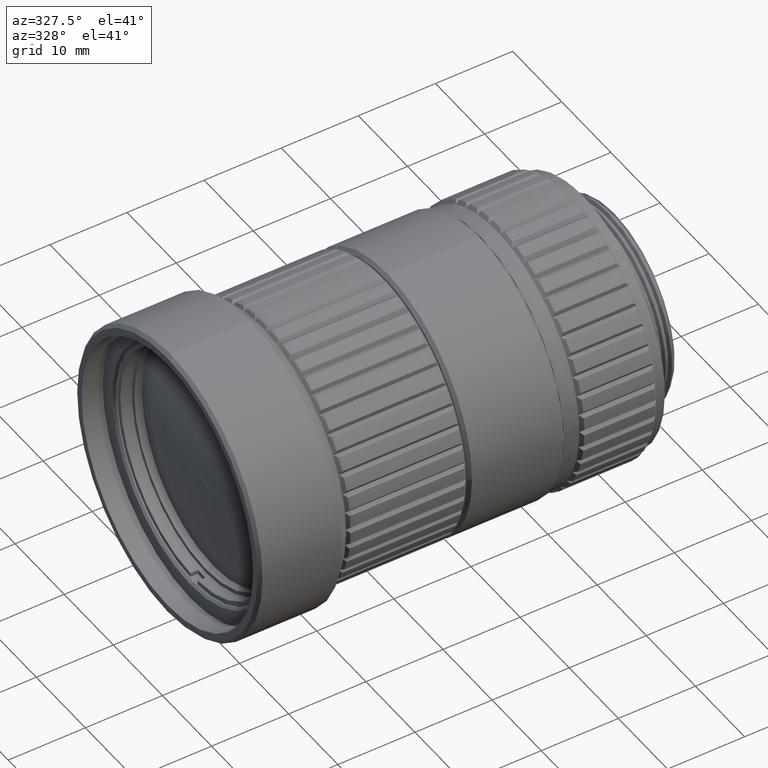
[diagram: clean part render]
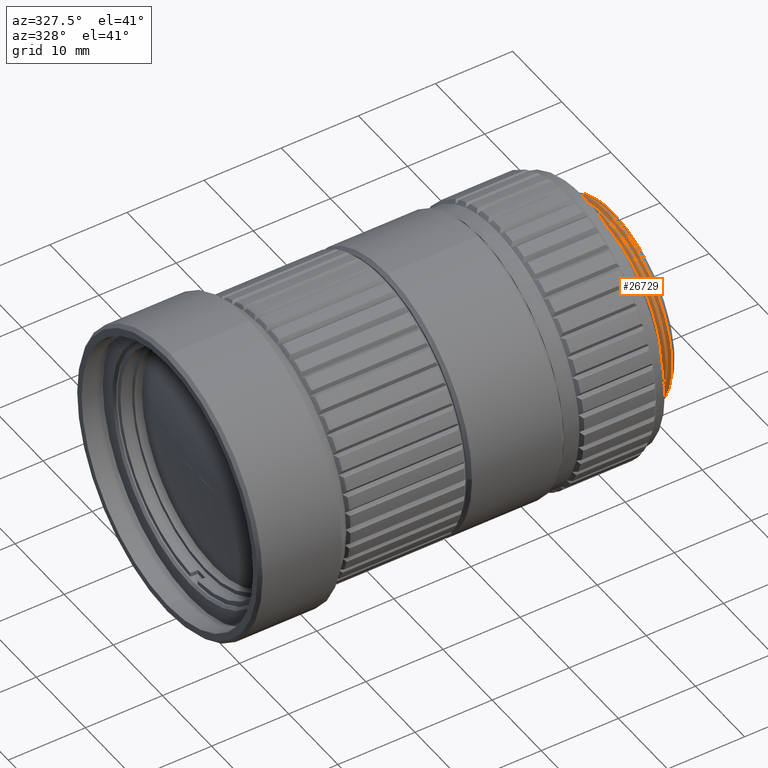
[diagram: same view with one face highlighted and labeled with its STEP entity id]
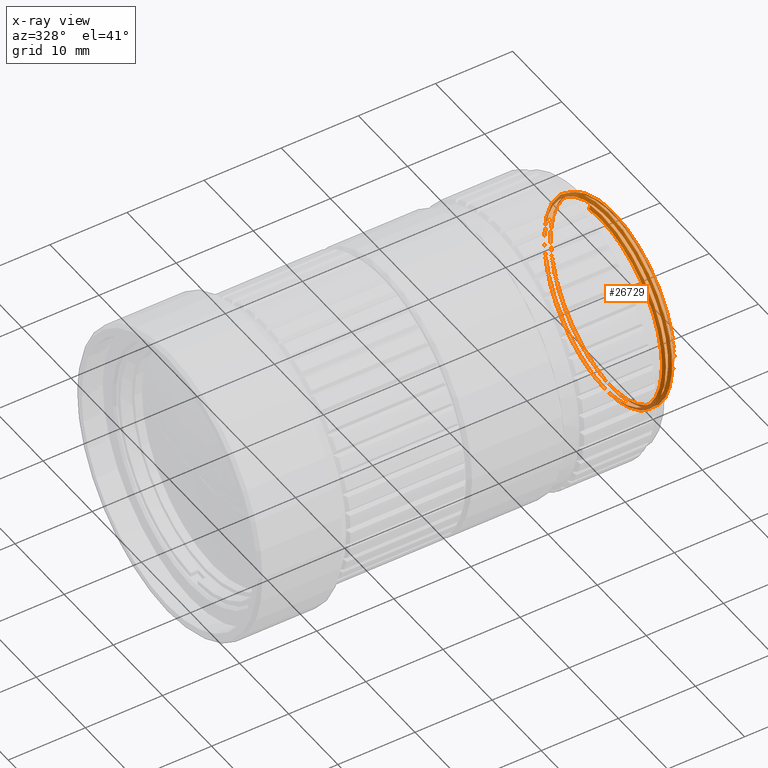
[diagram: x-ray of the same camera — body ghosted, the highlighted face saturated]
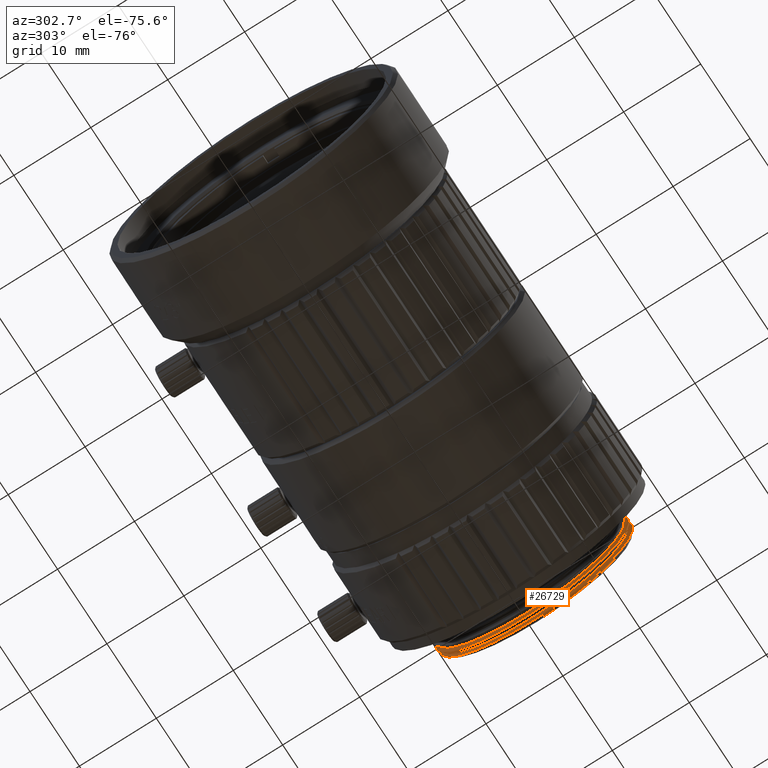
[diagram: same view with one face highlighted and labeled with its STEP entity id]
A machine part, auxiliary view. The second image highlights one B-rep face of the part: STEP entity #26729.
The next image is the same camera in x-ray: the body ghosted, the highlighted face saturated — about 22% of this face is hidden behind the body in this view.
A second angle (auxiliary view) of the same face is appended — the face is thin or edge-on in the first view.
In plain terms, the highlighted face is a freeform B-spline surface patch.
Its self-contained STEP definition (entity closure, byte-faithful):
#1004 = VERTEX_POINT ( 'NONE', #45965 ) ;
#1677 = CARTESIAN_POINT ( 'NONE',  ( 54.73645370815498978, 7.658031130037672440, 9.966211677220874421 ) ) ;
#2044 = CARTESIAN_POINT ( 'NONE',  ( 54.42513561274000011, -6.049245361572000768, -11.55919064244999994 ) ) ;
#2242 = CARTESIAN_POINT ( 'NONE',  ( 54.26031915178703002, -8.933870032309114251, 9.135179457840850503 ) ) ;
#2391 = CARTESIAN_POINT ( 'NONE',  ( 54.11019870908999962, 7.866446530626999945, 10.63576447660000035 ) ) ;
#2415 = CARTESIAN_POINT ( 'NONE',  ( 54.91937761460659573, -12.23188022212828763, -1.242856294832663355 ) ) ;
#2733 = CARTESIAN_POINT ( 'NONE',  ( 53.23537279532000355, 5.753618313101000581, 11.17935641986000128 ) ) ;
#2759 = CARTESIAN_POINT ( 'NONE',  ( 53.58413948241724967, 6.460909819509000229, -11.09636074301999997 ) ) ;
#3066 = CARTESIAN_POINT ( 'NONE',  ( 54.62109623463999242, 12.28351863696999935, 3.820699898218999913 ) ) ;
#3089 = CARTESIAN_POINT ( 'NONE',  ( 53.84788892090094947, 6.452693669637000085, 11.10114060645000045 ) ) ;
#3103 = CARTESIAN_POINT ( 'NONE',  ( 54.14591489475014185, 1.662427369948003886, 12.69999999999999929 ) ) ;
#3111 = ORIENTED_EDGE ( 'NONE', *, *, #47659, .T. ) ;
#3199 = CARTESIAN_POINT ( 'NONE',  ( 54.78892483293099502, -2.879977072794970283E-11, 12.40907310349575887 ) ) ;
#3261 = CARTESIAN_POINT ( 'NONE',  ( 53.48445504472032752, -10.15570878676020428, 7.804818648578837781 ) ) ;
#3317 = CARTESIAN_POINT ( 'NONE',  ( 53.09721874999999613, 2.263081466137569997, 12.05836889272985957 ) ) ;
#3408 = CARTESIAN_POINT ( 'NONE',  ( 53.87224614560000191, 7.699038456267000008, -10.75756822113999966 ) ) ;
#3606 = CARTESIAN_POINT ( 'NONE',  ( 53.56713793156869485, -12.69930451990179954, 0.0001641406518056074911 ) ) ;
#3745 = CARTESIAN_POINT ( 'NONE',  ( 54.34115172957999818, 5.626117689026999713, -11.36530799391000102 ) ) ;
#4090 = CARTESIAN_POINT ( 'NONE',  ( 53.62729403912999970, 11.25600105848000076, -5.841734863790001064 ) ) ;
#4429 = CARTESIAN_POINT ( 'NONE',  ( 53.60979783983999880, 1.925912106489999776, -12.71901881533999834 ) ) ;
#4767 = CARTESIAN_POINT ( 'NONE',  ( 54.81705685655000337, -11.21589953095000070, 5.918479202490999569 ) ) ;
#5114 = CARTESIAN_POINT ( 'NONE',  ( 53.50831775739000307, 1.898606571985999913, -12.53868887920000041 ) ) ;
#6050 = EDGE_CURVE ( 'NONE', #25565, #61445, #41696, .T. ) ;
#6790 = CARTESIAN_POINT ( 'NONE',  ( 53.60021076255303996, -12.36949042003081267, -3.324065744654892018 ) ) ;
#7482 = CARTESIAN_POINT ( 'NONE',  ( 54.17643253899016287, -1.405538146457851800, 12.70000000000000639 ) ) ;
#7616 = CARTESIAN_POINT ( 'NONE',  ( 53.71127792229000164, 1.953217641022000350, -12.89934875149000071 ) ) ;
#7817 = CARTESIAN_POINT ( 'NONE',  ( 54.38614907098234141, -12.52407796771912452, -2.532391861391265042 ) ) ;
#7962 = CARTESIAN_POINT ( 'NONE',  ( 54.06820676750999866, 2.154847250365000022, 12.86720214664000039 ) ) ;
#8038 = CARTESIAN_POINT ( 'NONE',  ( 53.96401293157089896, 12.69999792592820143, -1.508907841191324955E-05 ) ) ;
#8162 = CARTESIAN_POINT ( 'NONE',  ( 53.68289284001382811, -7.804798864512373591, -10.15572848251313154 ) ) ;
#8165 = CARTESIAN_POINT ( 'NONE',  ( 53.53406477682936782, -12.36941553383898196, 3.324330676979282195 ) ) ;
#8298 = CARTESIAN_POINT ( 'NONE',  ( 54.22917499083000337, -3.972121998545999677, 12.61834830115999928 ) ) ;
#8338 = CARTESIAN_POINT ( 'NONE',  ( 54.16245143685730312, 8.996919864793189869E-07, 12.69928529559549979 ) ) ;
#8636 = CARTESIAN_POINT ( 'NONE',  ( 53.35668225805999754, 4.054743619723000236, 12.25138848129999936 ) ) ;
#8662 = CARTESIAN_POINT ( 'NONE',  ( 53.13610188163043802, -1.502708541149055721, 12.46802496612265720 ) ) ;
#8980 = CARTESIAN_POINT ( 'NONE',  ( 54.78206445795999713, 9.343822184644999140, 9.105012224907000018 ) ) ;
#9321 = CARTESIAN_POINT ( 'NONE',  ( 53.96672668506000292, 2.124722980206000145, 12.68732161264999903 ) ) ;
#9661 = CARTESIAN_POINT ( 'NONE',  ( 53.74627032087000345, 11.34604305482000086, 5.664868320492999487 ) ) ;
#9707 = CARTESIAN_POINT ( 'NONE',  ( 54.53687812029300375, -5.089691311584220231E-08, -12.66111245551511821 ) ) ;
#10012 = CARTESIAN_POINT ( 'NONE',  ( 54.08570296680999689, -9.009113106591000175, 9.182508289032998761 ) ) ;
#10359 = CARTESIAN_POINT ( 'NONE',  ( 54.51961615220000112, 12.10936321164999896, 3.766530108976000157 ) ) ;
#10564 = CARTESIAN_POINT ( 'NONE',  ( 54.81785468180041221, -4.396378157755340688, 11.60688338856212987 ) ) ;
#10711 = CARTESIAN_POINT ( 'NONE',  ( 54.87654499741999814, -12.68014677598999995, 0.1855545211357000068 ) ) ;
#10751 = CARTESIAN_POINT ( 'NONE',  ( 53.93093992922157298, 12.36944958243529236, -3.324210156011347284 ) ) ;
#10869 = EDGE_CURVE ( 'NONE', #51452, #48421, #63498, .T. ) ;
#10903 = CARTESIAN_POINT ( 'NONE',  ( 54.85835647021672656, -9.494257741298048003, 8.030356631402108647 ) ) ;
#11128 = CARTESIAN_POINT ( 'NONE',  ( 55.12149710389000035, -11.69981674090000112, 6.173835800013000252 ) ) ;
#11473 = CARTESIAN_POINT ( 'NONE',  ( 54.28866313169999813, -9.264575075014999328, 9.442887042643999251 ) ) ;
#12021 = CARTESIAN_POINT ( 'NONE',  ( 54.31624356031826295, -11.98988429314196580, 4.416810174573478243 ) ) ;
#12148 = B_SPLINE_CURVE_WITH_KNOTS ( 'NONE', 3,
 ( #19290, #62792, #30781, #67693, #15090, #3261, #68041, #8165, #62454, #3606 ),
 .UNSPECIFIED., .F., .F.,
 ( 4, 2, 2, 2, 4 ),
 ( 0.000000000000000000, 0.2500000000000000555, 0.5000000000000001110, 0.7500000000000000000, 1.000000000000000000 ),
 .UNSPECIFIED. ) ;
#12513 = CARTESIAN_POINT ( 'NONE',  ( 54.58610383605000038, -0.1486555990842000075, -13.22793893791999942 ) ) ;
#12851 = CARTESIAN_POINT ( 'NONE',  ( 53.75326986386000527, -4.169106735638999695, -12.55464123105999974 ) ) ;
#12875 = CARTESIAN_POINT ( 'NONE',  ( 54.83694931521725380, -10.93802658851999965, 6.725483207831000065 ) ) ;
#13071 = VERTEX_POINT ( 'NONE', #3199 ) ;
#13195 = CARTESIAN_POINT ( 'NONE',  ( 53.53281349966999869, -12.43093737318000080, -3.959801674927999393 ) ) ;
#13221 = CARTESIAN_POINT ( 'NONE',  ( 53.65007684203725091, 11.13294994650000014, -6.397656143868999834 ) ) ;
#13392 = CARTESIAN_POINT ( 'NONE',  ( 53.64982000902949721, -10.15582877197032019, -7.804668364539385728 ) ) ;
#13537 = CARTESIAN_POINT ( 'NONE',  ( 54.85904879812999724, -7.415168158091000272, 10.51177418763000126 ) ) ;
#13563 = CARTESIAN_POINT ( 'NONE',  ( 53.32039004393725179, -12.83960148421000191, -0.1318837148353999844 ) ) ;
#13874 = CARTESIAN_POINT ( 'NONE',  ( 54.66308817622000049, 12.85977393903000099, -2.198743187080000272 ) ) ;
#13911 = CARTESIAN_POINT ( 'NONE',  ( 54.12937835264293795, 3.324200643743225214, 12.36945248749876214 ) ) ;
#14209 = CARTESIAN_POINT ( 'NONE',  ( 54.48462375360999488, -0.1466060797490999768, -13.04556493309999965 ) ) ;
#14233 = CARTESIAN_POINT ( 'NONE',  ( 53.97976364014094486, -6.350724913072999911, 11.15978814482000026 ) ) ;
#14598 = CARTESIAN_POINT ( 'NONE',  ( 54.55790022030949160, 3.309687959823182535, -12.30895678754560940 ) ) ;
#14889 = CARTESIAN_POINT ( 'NONE',  ( 53.98422288436000116, -8.881382122404000157, 9.052318912202000689 ) ) ;
#15090 = CARTESIAN_POINT ( 'NONE',  ( 53.45138188998095785, -7.804687383678736268, 10.15580966450870370 ) ) ;
#15227 = CARTESIAN_POINT ( 'NONE',  ( 54.02621482592999769, -3.862594459863000207, 12.27040918161000072 ) ) ;
#15274 = CARTESIAN_POINT ( 'NONE',  ( 54.63146595951957352, 11.68333762540867227, -4.838137830161944208 ) ) ;
#15572 = CARTESIAN_POINT ( 'NONE',  ( 53.80575846174000532, 7.541081703035000139, 10.19585763143999912 ) ) ;
#15613 = CARTESIAN_POINT ( 'NONE',  ( 53.89786692687217595, 11.09708206491970550, -6.395969494781450493 ) ) ;
#16335 = CARTESIAN_POINT ( 'NONE',  ( 55.00252082214999660, -1.891212663651000048, 13.09289531890999925 ) ) ;
#17010 = CARTESIAN_POINT ( 'NONE',  ( 54.66268233663340226, 12.53459713445789880, -9.073949111479980131E-05 ) ) ;
#17374 = CARTESIAN_POINT ( 'NONE',  ( 55.18098524476000222, -13.22723987649999877, 0.1935603904410999887 ) ) ;
#17574 = CARTESIAN_POINT ( 'NONE',  ( 54.44207347951358855, -10.22512088003577446, -7.662404353060779272 ) ) ;
#17611 = CARTESIAN_POINT ( 'NONE',  ( 53.34526293157119881, 2.342337658171770087, 12.48134417870062052 ) ) ;
#17716 = FACE_OUTER_BOUND ( 'NONE', #66700, .T. ) ;
#18040 = CARTESIAN_POINT ( 'NONE',  ( 54.77843060797566466, 1.624475506223388432, 12.41829543773918232 ) ) ;
#18062 = CARTESIAN_POINT ( 'NONE',  ( 53.88974234490000015, 13.04598926077999899, -0.1020880690515999917 ) ) ;
#18086 = CARTESIAN_POINT ( 'NONE',  ( 54.92762308449130160, -12.09974839948809944, -2.032842772318760094 ) ) ;
#18177 = CARTESIAN_POINT ( 'NONE',  ( 54.78892483293099502, -2.879977072794970283E-11, 12.40907310349575887 ) ) ;
#18402 = CARTESIAN_POINT ( 'NONE',  ( 55.13899330318999858, -11.28699765041000092, -5.539478106714000205 ) ) ;
#18408 = CARTESIAN_POINT ( 'NONE',  ( 53.26277734640019901, 2.315868321571546762, 12.34024708888285282 ) ) ;
#18642 = B_SPLINE_CURVE_WITH_KNOTS ( 'NONE', 3,
 ( #17611, #64991, #48617, #32966 ),
 .UNSPECIFIED., .F., .F.,
 ( 4, 4 ),
 ( 0.000000000000000000, 1.000000000000000000 ),
 .UNSPECIFIED. ) ;
#18738 = CARTESIAN_POINT ( 'NONE',  ( 53.51531730037999779, -10.66252966893000043, 7.830098303541999094 ) ) ;
#18766 = CARTESIAN_POINT ( 'NONE',  ( 54.37538779787094967, 6.239917358387000235, -11.22212144466999995 ) ) ;
#19087 = CARTESIAN_POINT ( 'NONE',  ( 54.50211995289999578, 10.31632947608999906, -7.684785211070000344 ) ) ;
#19290 = CARTESIAN_POINT ( 'NONE',  ( 53.36869900313249815, 1.662555919164055034E-08, 12.69999788683113984 ) ) ;
#19431 = CARTESIAN_POINT ( 'NONE',  ( 53.65178978140999533, -4.111627131654000067, -12.38155000261999916 ) ) ;
#19765 = CARTESIAN_POINT ( 'NONE',  ( 54.22217544784000864, -5.880111236949999487, -11.23600097594999880 ) ) ;
#19813 = CARTESIAN_POINT ( 'NONE',  ( 54.61044717688859862, 10.00935162498933018, -7.678397942709591639 ) ) ;
#19907 = B_SPLINE_CURVE_WITH_KNOTS ( 'NONE', 3,
 ( #44864, #18408, #61225, #24337 ),
 .UNSPECIFIED., .F., .F.,
 ( 4, 4 ),
 ( 0.000000000000000000, 1.000000000000000000 ),
 .UNSPECIFIED. ) ;
#20114 = CARTESIAN_POINT ( 'NONE',  ( 53.15372209315999896, 3.942937867379999961, 11.91356793459000052 ) ) ;
#20215 = CARTESIAN_POINT ( 'NONE',  ( 54.53687812029300375, -5.089691311584220231E-08, -12.66111245551511821 ) ) ;
#20460 = CARTESIAN_POINT ( 'NONE',  ( 54.38314367116000625, -0.1445565604197000253, -12.86319092827999988 ) ) ;
#20658 = CARTESIAN_POINT ( 'NONE',  ( 54.82942662134814782, -6.017280782759728552, 10.84320684950516700 ) ) ;
#20807 = CARTESIAN_POINT ( 'NONE',  ( 54.04371102523000303, -12.02165905456999973, 4.037714659058000422 ) ) ;
#21087 = ORIENTED_EDGE ( 'NONE', *, *, #33847, .T. ) ;
#21153 = CARTESIAN_POINT ( 'NONE',  ( 54.63859243393999776, 4.078714861154999483, 12.00780946088999990 ) ) ;
#21213 = ORIENTED_EDGE ( 'NONE', *, *, #59488, .F. ) ;
#21582 = CARTESIAN_POINT ( 'NONE',  ( 54.46712755430999664, -10.78377806057000043, -7.662284108623999224 ) ) ;
#21625 = ORIENTED_EDGE ( 'NONE', *, *, #23138, .F. ) ;
#21697 = CARTESIAN_POINT ( 'NONE',  ( 54.90464422840558001, -12.23245608655920691, 1.510718606325845315 ) ) ;
#22825 = CARTESIAN_POINT ( 'NONE',  ( 54.40013017311515142, -12.16425891314181662, -3.911053895716375628 ) ) ;
#22944 = CARTESIAN_POINT ( 'NONE',  ( 54.67348835842120280, 12.52298363241117762, 1.640903840680264514 ) ) ;
#23138 = EDGE_CURVE ( 'NONE', #61445, #53239, #26781, .T. ) ;
#23309 = CARTESIAN_POINT ( 'NONE',  ( 53.99122242734999588, 13.22836919761000019, -0.1035152368129000078 ) ) ;
#23513 = CARTESIAN_POINT ( 'NONE',  ( 54.35818686671671429, -12.77474025179073180, 0.2674864116658498547 ) ) ;
#23648 = CARTESIAN_POINT ( 'NONE',  ( 53.93173428646999668, 11.74164847467000072, -6.093780277378000321 ) ) ;
#23850 = CARTESIAN_POINT ( 'NONE',  ( 53.63328359353735664, -11.09714374759047573, -6.395866397239372780 ) ) ;
#23990 = CARTESIAN_POINT ( 'NONE',  ( 55.03751322073999575, -11.12920801275000038, -5.462037473647000319 ) ) ;
#24332 = CARTESIAN_POINT ( 'NONE',  ( 54.74007251639000060, 4.137374454483000008, 12.18050435220999894 ) ) ;
#24337 = CARTESIAN_POINT ( 'NONE',  ( 53.09721874999999613, 2.263081466137569997, 12.05836889272985957 ) ) ;
#24357 = CARTESIAN_POINT ( 'NONE',  ( 54.50726251711095216, 12.83784736528999915, -0.2495061454180000082 ) ) ;
#24680 = CARTESIAN_POINT ( 'NONE',  ( 54.90104073970000087, -1.865138455922000116, 12.91238316465999958 ) ) ;
#24719 = CARTESIAN_POINT ( 'NONE',  ( 54.03015909999972877, 11.09709235026123508, 6.395952323940953477 ) ) ;
#25021 = CARTESIAN_POINT ( 'NONE',  ( 53.32985333477999745, -12.08337406810000125, -3.849087437021000202 ) ) ;
#25354 = CARTESIAN_POINT ( 'NONE',  ( 53.55030969896999693, -4.054147527672999907, -12.20845877418000036 ) ) ;
#25565 = VERTEX_POINT ( 'NONE', #35186 ) ;
#25698 = CARTESIAN_POINT ( 'NONE',  ( 53.92473474348999929, -3.807830690556000430, 12.09643962182000010 ) ) ;
#25886 = ORIENTED_EDGE ( 'NONE', *, *, #49041, .F. ) ;
#26038 = CARTESIAN_POINT ( 'NONE',  ( 54.75756871568000150, -7.310036086206000761, 10.36273851156999903 ) ) ;
#26429 = CARTESIAN_POINT ( 'NONE',  ( 54.62095656820404344, 10.91460716097261496, -6.302768271833092406 ) ) ;
#26729 = ADVANCED_FACE ( 'NONE', ( #17716 ), #49912, .F. ) ;
#26781 = B_SPLINE_CURVE_WITH_KNOTS ( 'NONE', 3,
 ( #53895, #54235, #59478, #47987, #53554, #64360, #15613, #10751, #58792, #37891 ),
 .UNSPECIFIED., .F., .F.,
 ( 4, 2, 2, 2, 4 ),
 ( 0.000000000000000000, 0.2499999999999999445, 0.4999999999999998890, 0.7499999999999998890, 1.000000000000000000 ),
 .UNSPECIFIED. ) ;
#26926 = CARTESIAN_POINT ( 'NONE',  ( 54.92762308449130160, -12.09974839948809944, -2.032842772318760094 ) ) ;
#27113 = B_SPLINE_CURVE_WITH_KNOTS ( 'NONE', 3,
 ( #31999, #58448, #47993, #47647, #15274, #26429, #19813, #62633, #57057, #41050, #14598, #42436, #9707 ),
 .UNSPECIFIED., .F., .F.,
 ( 4, 2, 1, 2, 2, 2, 4 ),
 ( 0.000000000000000000, 0.1250000000000000555, 0.2500000000000000555, 0.3750000000000000555, 0.5000000000000000000, 0.7500000000000001110, 1.000000000000000000 ),
 .UNSPECIFIED. ) ;
#27846 = CARTESIAN_POINT ( 'NONE',  ( 53.36869900313249815, 1.662555919164055034E-08, 12.69999788683113984 ) ) ;
#27980 = CARTESIAN_POINT ( 'NONE',  ( 54.92762308449130160, -12.09974839948809944, -2.032842772318760094 ) ) ;
#28317 = EDGE_CURVE ( 'NONE', #40635, #48421, #28671, .T. ) ;
#28373 = EDGE_CURVE ( 'NONE', #45166, #25565, #12148, .T. ) ;
#28530 = CARTESIAN_POINT ( 'NONE',  ( 54.64559197692999248, 5.868860160802999992, -11.85567152819999848 ) ) ;
#28648 = CARTESIAN_POINT ( 'NONE',  ( 54.79471080270475625, -0.8983465191886125245, 12.40394293261466530 ) ) ;
#28671 = B_SPLINE_CURVE_WITH_KNOTS ( 'NONE', 3,
 ( #60743, #7482, #55166, #38469, #28733, #2242, #59714, #66328, #12021, #55503, #23513, #7817, #22825, #65287, #17574, #50279, #44725, #38815 ),
 .UNSPECIFIED., .F., .F.,
 ( 4, 2, 2, 2, 2, 2, 2, 2, 4 ),
 ( 0.000000000000000000, 0.1249999999999999722, 0.2499999999999999445, 0.3749999999999998890, 0.5000000000000000000, 0.6250000000000001110, 0.7500000000000000000, 0.8750000000000000000, 1.000000000000000000 ),
 .UNSPECIFIED. ) ;
#28733 = CARTESIAN_POINT ( 'NONE',  ( 54.23235694752139580, -6.720111923116939501, 10.86764156668455072 ) ) ;
#28871 = CARTESIAN_POINT ( 'NONE',  ( 53.39634101864000115, 0.05860527884925000042, 13.22852621406999951 ) ) ;
#29211 = CARTESIAN_POINT ( 'NONE',  ( 53.29486093618999831, 0.05779728605157000154, 13.04614411245999861 ) ) ;
#29446 = ORIENTED_EDGE ( 'NONE', *, *, #6050, .F. ) ;
#29547 = CARTESIAN_POINT ( 'NONE',  ( 53.45582915950999592, -5.949698512412000539, 11.81537336979000052 ) ) ;
#29574 = CARTESIAN_POINT ( 'NONE',  ( 54.44132515749095091, 11.00408325982999891, -6.616851969017999657 ) ) ;
#29586 = CARTESIAN_POINT ( 'NONE',  ( 53.98054947367813128, 12.70000197514859686, 1.662412280865969372 ) ) ;
#29888 = CARTESIAN_POINT ( 'NONE',  ( 54.96052888058000008, -7.520300229999000052, 10.66080986368000083 ) ) ;
#29915 = CARTESIAN_POINT ( 'NONE',  ( 53.45226476317724718, -6.342462312541999658, -11.16448611986000117 ) ) ;
#30085 = ORIENTED_EDGE ( 'NONE', *, *, #45284, .T. ) ;
#30238 = CARTESIAN_POINT ( 'NONE',  ( 54.60360003535000573, 10.46259414186000036, -7.793739906885000401 ) ) ;
#30579 = CARTESIAN_POINT ( 'NONE',  ( 53.44882961652000120, -3.996667923668000277, -12.03536754574999890 ) ) ;
#30781 = CARTESIAN_POINT ( 'NONE',  ( 53.40177215787193177, -3.324170799920533881, 12.36945850034019223 ) ) ;
#30917 = CARTESIAN_POINT ( 'NONE',  ( 53.68678217999999447, 12.68122938714000192, -0.09923373350505999835 ) ) ;
#31263 = CARTESIAN_POINT ( 'NONE',  ( 53.49082155809999506, -9.151712112700998603, -9.040395215408000951 ) ) ;
#31606 = CARTESIAN_POINT ( 'NONE',  ( 53.03241263042000497, 5.592749785084000003, 10.86678674394999966 ) ) ;
#31999 = CARTESIAN_POINT ( 'NONE',  ( 54.66268233663340226, 12.53459713445789880, -9.073949111479980131E-05 ) ) ;
#32148 = CARTESIAN_POINT ( 'NONE',  ( 54.89307228885841283, -11.95788734672959208, 3.280389572723594327 ) ) ;
#32966 = CARTESIAN_POINT ( 'NONE',  ( 53.36869900313249815, 1.662555919164055034E-08, 12.69999788683113984 ) ) ;
#33616 = CARTESIAN_POINT ( 'NONE',  ( 53.76557491747460205, 9.568210651382531010E-07, -12.69935253244491946 ) ) ;
#33847 = EDGE_CURVE ( 'NONE', #61282, #13071, #66649, .T. ) ;
#34103 = CARTESIAN_POINT ( 'NONE',  ( 54.84155259882999900, 4.196034047781999732, 12.35319924353999888 ) ) ;
#34437 = CARTESIAN_POINT ( 'NONE',  ( 53.35434907706000018, -5.867669834299999998, 11.65247445031999973 ) ) ;
#34639 = CARTESIAN_POINT ( 'NONE',  ( 53.69942925550597579, -6.396008993060894099, -11.09706156091360540 ) ) ;
#34782 = CARTESIAN_POINT ( 'NONE',  ( 54.79956065726000247, -1.839064248189000050, 12.73187101040999991 ) ) ;
#35110 = CARTESIAN_POINT ( 'NONE',  ( 53.81275800473000004, 1.980523175549999904, -13.07967868763000041 ) ) ;
#35138 = CARTESIAN_POINT ( 'NONE',  ( 53.38632740355725304, -11.06423682908999950, -6.515766525867999093 ) ) ;
#35186 = CARTESIAN_POINT ( 'NONE',  ( 53.56713793156869485, -12.69930451990179954, 0.0001641406518056074911 ) ) ;
#35439 = CARTESIAN_POINT ( 'NONE',  ( 53.94923048577000202, 11.67239794555000110, 5.827811248972000868 ) ) ;
#35466 = CARTESIAN_POINT ( 'NONE',  ( 53.78195156128094823, 11.12821082886000035, 6.405895887204000161 ) ) ;
#35786 = CARTESIAN_POINT ( 'NONE',  ( 54.14519110767999877, -12.19455312910000089, 4.095784592343999719 ) ) ;
#36126 = CARTESIAN_POINT ( 'NONE',  ( 53.90723854419000105, 7.649536645584000816, 10.34249324648000012 ) ) ;
#36225 = CARTESIAN_POINT ( 'NONE',  ( 54.51095929636164072, -4.102833275316448258, -12.17999081315167409 ) ) ;
#36469 = CARTESIAN_POINT ( 'NONE',  ( 54.32365553028999727, -5.964678299277999862, -11.39759580918999937 ) ) ;
#36817 = CARTESIAN_POINT ( 'NONE',  ( 53.05224201071000323, 3.887034991209000090, 11.74465766123999799 ) ) ;
#37317 = B_SPLINE_CURVE_WITH_KNOTS ( 'NONE', 3,
 ( #18086, #2415, #61933, #12875, #39328, #66488, #40697, #40363, #24357, #29574, #18766, #50786, #40018, #45221, #61590, #60906, #14233, #56692, #3089, #35466, #60564, #13221, #2759, #61248, #29915, #35138, #13563, #56357, #56012, #8662, #51123, #50106 ),
 .UNSPECIFIED., .F., .F.,
 ( 4, 1, 1, 1, 1, 1, 1, 1, 1, 1, 1, 1, 1, 1, 1, 1, 1, 1, 1, 1, 1, 1, 1, 1, 1, 1, 1, 1, 1, 4 ),
 ( 0.000000000000000000, 0.01351413060341601427, 0.04953738951632690596, 0.08556064842940183657, 0.1215839073423128219, 0.1576071662553875652, 0.1936304251684623223, 0.2296536840813733216, 0.2656769429944482730, 0.3017002019073592445, 0.3377234608204341404, 0.3737467197333449453, 0.4097699786464198968, 0.4457932375593308683, 0.4818164964724058197, 0.5178397553854805491, 0.5538630142983915761, 0.5898862732114663610, 0.6259095321243772769, 0.6619327910374521728, 0.6979560499503631998, 0.7339793088634379847, 0.7700025677765128806, 0.8060258266894239076, 0.8420490856024988036, 0.8780723445154096085, 0.9140956034284843934, 0.9501188623413953094, 0.9861421212544703163, 1.000000000000000000 ),
 .UNSPECIFIED. ) ;
#37891 = CARTESIAN_POINT ( 'NONE',  ( 53.96401293157089896, 12.69999792592820143, -1.508907841191324955E-05 ) ) ;
#38247 = CARTESIAN_POINT ( 'NONE',  ( 54.78892483293099502, -2.879977072794970283E-11, 12.40907310349575887 ) ) ;
#38333 = EDGE_CURVE ( 'NONE', #1004, #51452, #27113, .T. ) ;
#38418 = CARTESIAN_POINT ( 'NONE',  ( 54.49799788804480727, -5.925986347641719831, -11.23266106063899805 ) ) ;
#38469 = CARTESIAN_POINT ( 'NONE',  ( 54.21837584538859289, -5.468347716288564087, 11.54827739253391883 ) ) ;
#38614 = CARTESIAN_POINT ( 'NONE',  ( 54.76456825867000333, 13.03955062837999890, -2.229481112371000329 ) ) ;
#38812 = CARTESIAN_POINT ( 'NONE',  ( 53.58367434706087806, -12.70002148625476046, -1.662275721620679603 ) ) ;
#38815 = CARTESIAN_POINT ( 'NONE',  ( 54.49799788804480727, -5.925986347641719831, -11.23266106063899805 ) ) ;
#38958 = CARTESIAN_POINT ( 'NONE',  ( 55.22064400534999606, -12.32645190670000090, -3.820477579200999951 ) ) ;
#39163 = CARTESIAN_POINT ( 'NONE',  ( 53.74903850198246147, -1.662438914530634859, -12.70000012525497723 ) ) ;
#39302 = CARTESIAN_POINT ( 'NONE',  ( 53.83025420402999828, 11.57976600259999955, -6.009765139521999977 ) ) ;
#39328 = CARTESIAN_POINT ( 'NONE',  ( 54.77101195559724545, -6.128498570884000074, 11.28335427847000183 ) ) ;
#39628 = CARTESIAN_POINT ( 'NONE',  ( 54.70497103328766997, 10.91482723351947470, 6.292264874545205444 ) ) ;
#39650 = CARTESIAN_POINT ( 'NONE',  ( 54.54411189448000385, 5.787946003536999839, -11.69221701676999992 ) ) ;
#39991 = CARTESIAN_POINT ( 'NONE',  ( 54.30615933098999903, -12.90593888887000062, -1.909188087084999763 ) ) ;
#40018 = CARTESIAN_POINT ( 'NONE',  ( 54.24351307862724525, -6.562292928439998896, -11.03670647793999926 ) ) ;
#40337 = CARTESIAN_POINT ( 'NONE',  ( 53.41383721793000205, -10.51552504133999832, 7.722144495139000142 ) ) ;
#40363 = CARTESIAN_POINT ( 'NONE',  ( 54.57319987673095341, 11.25287590980000019, 6.184283499733000511 ) ) ;
#40374 = CARTESIAN_POINT ( 'NONE',  ( 54.07976872632134047, 7.804748487666776313, 10.15576515111566813 ) ) ;
#40426 = VERTEX_POINT ( 'NONE', #48490 ) ;
#40635 = VERTEX_POINT ( 'NONE', #42849 ) ;
#40674 = CARTESIAN_POINT ( 'NONE',  ( 53.63429358211999443, -12.60471902572000147, -4.015158793888000233 ) ) ;
#40697 = CARTESIAN_POINT ( 'NONE',  ( 54.63913723635095465, 6.671248796900999700, 10.97119031486000118 ) ) ;
#40947 = ORIENTED_EDGE ( 'NONE', *, *, #38333, .T. ) ;
#41001 = CARTESIAN_POINT ( 'NONE',  ( 53.09190077128999974, 0.05618130045493999886, 12.68137990922999947 ) ) ;
#41041 = CARTESIAN_POINT ( 'NONE',  ( 53.99708601578534939, 12.36945643702800979, 3.324185947389006746 ) ) ;
#41050 = CARTESIAN_POINT ( 'NONE',  ( 54.57891900294208654, 6.356902991200745312, -11.02694786766813628 ) ) ;
#41055 = CARTESIAN_POINT ( 'NONE',  ( 53.76557491747460205, 9.568210651382531010E-07, -12.69935253244491946 ) ) ;
#41349 = CARTESIAN_POINT ( 'NONE',  ( 53.13389271286999360, 5.673184049090999714, 11.02307158190000003 ) ) ;
#41451 = CARTESIAN_POINT ( 'NONE',  ( 54.52392036701841960, -2.048262537941961892, -12.67448049589536119 ) ) ;
#41696 = B_SPLINE_CURVE_WITH_KNOTS ( 'NONE', 3,
 ( #55499, #38812, #6790, #23850, #13392, #8162, #34639, #60052, #39163, #33616 ),
 .UNSPECIFIED., .F., .F.,
 ( 4, 2, 2, 2, 4 ),
 ( 0.000000000000000000, 0.2500000000000000555, 0.5000000000000000000, 0.7500000000000000000, 1.000000000000000000 ),
 .UNSPECIFIED. ) ;
#41698 = CARTESIAN_POINT ( 'NONE',  ( 53.43133341723000740, -12.25715572064999925, -3.904444555965000063 ) ) ;
#42036 = CARTESIAN_POINT ( 'NONE',  ( 53.86524660262000452, 2.094598710009999643, 12.50744107867000032 ) ) ;
#42390 = CARTESIAN_POINT ( 'NONE',  ( 53.38934147564999932, -9.021959363303000856, -8.912220714249999176 ) ) ;
#42436 = CARTESIAN_POINT ( 'NONE',  ( 54.54739082899255465, 1.656882147123526217, -12.65033845095596021 ) ) ;
#42811 = CARTESIAN_POINT ( 'NONE',  ( 54.34815127257000000, -12.54034127819000055, 4.211924458849999553 ) ) ;
#42849 = CARTESIAN_POINT ( 'NONE',  ( 54.16245143685730312, 8.996919864793189869E-07, 12.69928529559549979 ) ) ;
#43148 = CARTESIAN_POINT ( 'NONE',  ( 54.40763941343999477, -13.08636095361000073, -1.935878098557000104 ) ) ;
#43839 = CARTESIAN_POINT ( 'NONE',  ( 54.94303268127999473, 4.254693641086000788, 12.52589413487000058 ) ) ;
#44527 = CARTESIAN_POINT ( 'NONE',  ( 54.12769490838000053, -3.917358229206999720, 12.44437874137999955 ) ) ;
#44647 = VERTEX_POINT ( 'NONE', #3317 ) ;
#44725 = CARTESIAN_POINT ( 'NONE',  ( 54.48401678591203989, -7.169130977374788216, -10.57681892207640750 ) ) ;
#44857 = CARTESIAN_POINT ( 'NONE',  ( 53.69378172298999630, -9.411217611467998623, -9.296744217754998374 ) ) ;
#44864 = CARTESIAN_POINT ( 'NONE',  ( 53.34526293157119881, 2.342337658171770087, 12.48134417870062052 ) ) ;
#44898 = CARTESIAN_POINT ( 'NONE',  ( 53.96401293157089896, 12.69999792592820143, -1.508907841191324955E-05 ) ) ;
#45166 = VERTEX_POINT ( 'NONE', #27846 ) ;
#45197 = CARTESIAN_POINT ( 'NONE',  ( 55.01768384044999749, -11.98656155645000077, -3.715131493175000355 ) ) ;
#45221 = CARTESIAN_POINT ( 'NONE',  ( 54.17757571900724400, -11.19109193936000146, -6.295398284707000691 ) ) ;
#45284 = EDGE_CURVE ( 'NONE', #40426, #44647, #19907, .T. ) ;
#45541 = CARTESIAN_POINT ( 'NONE',  ( 54.56160809376999765, 12.67999724967999953, -2.168005261793999772 ) ) ;
#45881 = CARTESIAN_POINT ( 'NONE',  ( 54.72257631709000236, 12.45767406228000063, 3.874869687493999848 ) ) ;
#45965 = CARTESIAN_POINT ( 'NONE',  ( 54.66268233663340226, 12.53459713445789880, -9.073949111479980131E-05 ) ) ;
#46221 = CARTESIAN_POINT ( 'NONE',  ( 53.25286899460999734, -5.785641156186999368, 11.48957553083999983 ) ) ;
#46564 = CARTESIAN_POINT ( 'NONE',  ( 54.28166358870999630, -0.1425070410527000120, -12.68081692346000011 ) ) ;
#46908 = CARTESIAN_POINT ( 'NONE',  ( 54.46012801132999925, 12.50022056032999984, -2.137267336474000246 ) ) ;
#47105 = CARTESIAN_POINT ( 'NONE',  ( 54.84678453066939596, -8.200445521832923745, 9.279621782057027701 ) ) ;
#47254 = CARTESIAN_POINT ( 'NONE',  ( 53.66928598071000067, 7.486744691780999439, -10.46093836706999980 ) ) ;
#47600 = CARTESIAN_POINT ( 'NONE',  ( 53.31235713547999922, -10.36852041375999889, 7.614190686738999680 ) ) ;
#47647 = CARTESIAN_POINT ( 'NONE',  ( 54.64197535083510360, 12.15485261662845495, -3.254944269922976030 ) ) ;
#47659 = EDGE_CURVE ( 'NONE', #13071, #1004, #50339, .T. ) ;
#47987 = CARTESIAN_POINT ( 'NONE',  ( 53.83172092217339610, 6.395957146249523717, -11.09708918217192597 ) ) ;
#47993 = CARTESIAN_POINT ( 'NONE',  ( 54.65248474215064789, 12.46574002430282313, -1.642041744915226031 ) ) ;
#48140 = CARTESIAN_POINT ( 'NONE',  ( 54.91621616795283245, -12.31193110515223665, -0.2660118443627067508 ) ) ;
#48421 = VERTEX_POINT ( 'NONE', #38418 ) ;
#48490 = CARTESIAN_POINT ( 'NONE',  ( 53.34526293157119881, 2.342337658171770087, 12.48134417870062052 ) ) ;
#48617 = CARTESIAN_POINT ( 'NONE',  ( 53.36088697927880276, 0.7853229971232290607, 12.69999999999999929 ) ) ;
#49041 = EDGE_CURVE ( 'NONE', #40426, #45166, #18642, .T. ) ;
#49380 = CARTESIAN_POINT ( 'NONE',  ( 54.74694793311026331, 6.268875200338572817, 10.87964266971194327 ) ) ;
#49717 = CARTESIAN_POINT ( 'NONE',  ( 54.76793638302056877, 3.253188744696955403, 12.10889694881280398 ) ) ;
#49739 = CARTESIAN_POINT ( 'NONE',  ( 54.52661569518000562, -6.133812423870999453, -11.72078547569999962 ) ) ;
#49912 = B_SPLINE_SURFACE_WITH_KNOTS ( 'NONE', 3, 3, ( 
 ( #64056, #38958, #17374, #11128, #64750, #16335, #43839, #65432, #53590, #38614, #59856, #28530, #12513, #49739, #21582, #43148, #42811, #11473, #8298, #50083, #2391, #61563, #23309, #23648, #3408, #35110, #12851, #44857, #40674, #66130, #18738, #29547, #28871, #8636, #50758 ),
 ( #18402, #51096, #60540, #56666, #29888, #24680, #34103, #8980, #45881, #13874, #30238, #39650, #14209, #2044, #67152, #39991, #55309, #56328, #44527, #7962, #65780, #35439, #18062, #39302, #55650, #7616, #19431, #60884, #13195, #61905, #40337, #34437, #29211, #50416, #2733 ),
 ( #23990, #45197, #66468, #61220, #13537, #34782, #24332, #55985, #3066, #45541, #19087, #66814, #20460, #36469, #57011, #52810, #35786, #10012, #15227, #9321, #36126, #67827, #62592, #57351, #47254, #4429, #25354, #31263, #41698, #62930, #47600, #46221, #51785, #20114, #41349 ),
 ( #52462, #57694, #10711, #4767, #26038, #63633, #21153, #51440, #10359, #46908, #58048, #3745, #46564, #19765, #63279, #68522, #20807, #14889, #25698, #42036, #15572, #9661, #30917, #4090, #52118, #5114, #30579, #42390, #25021, #68177, #67491, #68862, #41001, #36817, #31606 ) ),
 .UNSPECIFIED., .F., .F., .F.,
 ( 4, 4 ),
 ( 4, 1, 1, 1, 1, 1, 1, 1, 1, 1, 1, 1, 1, 1, 1, 1, 1, 1, 1, 1, 1, 1, 1, 1, 1, 1, 1, 1, 1, 1, 1, 1, 4 ),
 ( 0.3934958736650999711, 1.061910245448000056 ),
 ( 0.3776625262728999788, 0.3974919065631999926, 0.4173212868535000064, 0.4371506671438000202, 0.4569800474342000096, 0.4768094277245000234, 0.4966388080147999817, 0.5164681883050999955, 0.5362975685954999294, 0.5561269488857999432, 0.5759563291761000681, 0.5957857094664000819, 0.6156150897567999047, 0.6354444700471000296, 0.6552738503374000434, 0.6751032306277000572, 0.6949326109180999911, 0.7147619912084000049, 0.7345913714987000187, 0.7544207517889999215, 0.7742501320794000774, 0.7940795123697000912, 0.8139088926600001050, 0.8337382729502998968, 0.8535676532407000527, 0.8733970335310000666, 0.8932264138213000804, 0.9130557941115999832, 0.9328851744020000281, 0.9527145546923000419, 0.9725439349826000557, 0.9923733152729999896, 1.012202695563000132 ),
 .UNSPECIFIED. ) ;
#50083 = CARTESIAN_POINT ( 'NONE',  ( 54.16968684996000150, 2.184971520529999989, 13.04708268062999998 ) ) ;
#50106 = CARTESIAN_POINT ( 'NONE',  ( 53.09721874999999613, 2.263081466137569997, 12.05836889272985957 ) ) ;
#50279 = CARTESIAN_POINT ( 'NONE',  ( 54.47003568377922988, -8.302160377291324167, -9.712861089858249031 ) ) ;
#50339 = B_SPLINE_CURVE_WITH_KNOTS ( 'NONE', 3,
 ( #38247, #18040, #49717, #49380, #1677, #55286, #39628, #54943, #22944, #17010 ),
 .UNSPECIFIED., .F., .F.,
 ( 4, 2, 2, 2, 4 ),
 ( 0.000000000000000000, 0.2499999999999999445, 0.4999999999999998890, 0.7499999999999998890, 1.000000000000000000 ),
 .UNSPECIFIED. ) ;
#50372 = B_SPLINE_CURVE_WITH_KNOTS ( 'NONE', 3,
 ( #44898, #29586, #41041, #24719, #56368, #40374, #50797, #13911, #3103, #8338 ),
 .UNSPECIFIED., .F., .F.,
 ( 4, 2, 2, 2, 4 ),
 ( 0.000000000000000000, 0.2500000000000000000, 0.5000000000000000000, 0.7500000000000000000, 1.000000000000000000 ),
 .UNSPECIFIED. ) ;
#50416 = CARTESIAN_POINT ( 'NONE',  ( 53.25520217561000180, 3.998840743551999477, 12.08247820795000038 ) ) ;
#50758 = CARTESIAN_POINT ( 'NONE',  ( 53.33685287776999928, 5.834052577109999582, 11.33564125780999987 ) ) ;
#50786 = CARTESIAN_POINT ( 'NONE',  ( 54.30945043824724650, -0.1859467113263000015, -12.83892527349000012 ) ) ;
#50797 = CARTESIAN_POINT ( 'NONE',  ( 54.09630526842853726, 6.395965508576110459, 11.09708475111625781 ) ) ;
#51096 = CARTESIAN_POINT ( 'NONE',  ( 55.11916392290000033, -12.15650673158000039, -3.767804536189999887 ) ) ;
#51123 = CARTESIAN_POINT ( 'NONE',  ( 53.10566755844464382, 1.455909215860836659, 12.20973740310139988 ) ) ;
#51440 = CARTESIAN_POINT ( 'NONE',  ( 54.57910429307000300, 9.082573203742999368, 8.850440260873009279 ) ) ;
#51452 = VERTEX_POINT ( 'NONE', #55428 ) ;
#51785 = CARTESIAN_POINT ( 'NONE',  ( 53.19338085374000258, 0.05698929325430999310, 12.86376201085000126 ) ) ;
#51878 = ORIENTED_EDGE ( 'NONE', *, *, #10869, .T. ) ;
#52118 = CARTESIAN_POINT ( 'NONE',  ( 53.56780589825999783, 7.380597809561000311, -10.31262344001000031 ) ) ;
#52219 = CARTESIAN_POINT ( 'NONE',  ( 54.49799788804480727, -5.925986347641719831, -11.23266106063899805 ) ) ;
#52324 = CARTESIAN_POINT ( 'NONE',  ( 54.86992840976396479, -10.49123763687859778, 6.536809316539276438 ) ) ;
#52462 = CARTESIAN_POINT ( 'NONE',  ( 54.93603313829000001, -10.97141837508999984, -5.384596840600000434 ) ) ;
#52810 = CARTESIAN_POINT ( 'NONE',  ( 54.20467924855000064, -12.72551682411999963, -1.882498075605999910 ) ) ;
#53007 = CARTESIAN_POINT ( 'NONE',  ( 54.81206871202648045, -3.544080656432911258, 11.90175794840628498 ) ) ;
#53239 = VERTEX_POINT ( 'NONE', #8038 ) ;
#53554 = CARTESIAN_POINT ( 'NONE',  ( 53.84825742334809462, 7.804738638667179096, -10.15577229539108650 ) ) ;
#53590 = CARTESIAN_POINT ( 'NONE',  ( 54.82405639953999810, 12.63182948760000102, 3.929039476764000227 ) ) ;
#53895 = CARTESIAN_POINT ( 'NONE',  ( 53.76557491747460205, 9.568210651382531010E-07, -12.69935253244491946 ) ) ;
#54235 = CARTESIAN_POINT ( 'NONE',  ( 53.78211141864930056, 1.662425732231895159, -12.69999987474609249 ) ) ;
#54943 = CARTESIAN_POINT ( 'NONE',  ( 54.68398258337638396, 12.18936081244678782, 3.277320507254648074 ) ) ;
#55166 = CARTESIAN_POINT ( 'NONE',  ( 54.19041364112297288, -2.810793120086111596, 12.46454890949627803 ) ) ;
#55286 = CARTESIAN_POINT ( 'NONE',  ( 54.71546525824370377, 9.981678929051037485, 7.673177418292400631 ) ) ;
#55309 = CARTESIAN_POINT ( 'NONE',  ( 54.24667119011999716, -12.36744720365000028, 4.153854525594000258 ) ) ;
#55428 = CARTESIAN_POINT ( 'NONE',  ( 54.53687812029300375, -5.089691311584220231E-08, -12.66111245551511821 ) ) ;
#55499 = CARTESIAN_POINT ( 'NONE',  ( 53.56713793156869485, -12.69930451990179954, 0.0001641406518056074911 ) ) ;
#55503 = CARTESIAN_POINT ( 'NONE',  ( 54.34420576458389718, -12.66553298052243903, 1.688138560796115906 ) ) ;
#55650 = CARTESIAN_POINT ( 'NONE',  ( 53.77076606315999641, 7.592891574026000789, -10.60925329410000018 ) ) ;
#55985 = CARTESIAN_POINT ( 'NONE',  ( 54.68058437551999873, 9.213197694204998456, 8.977726242877999141 ) ) ;
#56012 = CARTESIAN_POINT ( 'NONE',  ( 53.18851532469094678, -6.570560246434000717, 11.03190039301999903 ) ) ;
#56328 = CARTESIAN_POINT ( 'NONE',  ( 54.18718304925000240, -9.136844090805000818, 9.312697665836001448 ) ) ;
#56357 = CARTESIAN_POINT ( 'NONE',  ( 53.25445268431725054, -11.19572274178000093, 6.287097312525000703 ) ) ;
#56368 = CARTESIAN_POINT ( 'NONE',  ( 54.04669564210693977, 10.15577442405976072, 7.804736421428073889 ) ) ;
#56666 = CARTESIAN_POINT ( 'NONE',  ( 55.02001702145000195, -11.53851100424999920, 6.088716934177999640 ) ) ;
#56692 = CARTESIAN_POINT ( 'NONE',  ( 53.91382628052094361, 0.05881573163005173605, 12.84013703461000233 ) ) ;
#57011 = CARTESIAN_POINT ( 'NONE',  ( 54.26416738941999540, -10.48642549475999886, -7.451003810792999893 ) ) ;
#57057 = CARTESIAN_POINT ( 'NONE',  ( 54.58942839425768057, 7.748208447456368830, -10.08005070754953536 ) ) ;
#57351 = CARTESIAN_POINT ( 'NONE',  ( 53.72877412158000254, 11.41788353053000016, -5.925750001669999989 ) ) ;
#57694 = CARTESIAN_POINT ( 'NONE',  ( 54.91620375800000176, -11.81661638131999936, -3.662458450182999758 ) ) ;
#57904 = CARTESIAN_POINT ( 'NONE',  ( 54.92200213772643735, -12.25299373488219246, -1.157908196664359846 ) ) ;
#58048 = CARTESIAN_POINT ( 'NONE',  ( 54.40063987045000005, 10.17006481035000043, -7.575830515226000372 ) ) ;
#58448 = CARTESIAN_POINT ( 'NONE',  ( 54.65773943780840938, 12.54012096895466044, -0.8206079437253447351 ) ) ;
#58644 = ORIENTED_EDGE ( 'NONE', *, *, #28373, .F. ) ;
#58792 = CARTESIAN_POINT ( 'NONE',  ( 53.94747643039628571, 12.69999802483656204, -1.662439864441727533 ) ) ;
#59478 = CARTESIAN_POINT ( 'NONE',  ( 53.79864791982399197, 3.324196391625716895, -12.36945328151733925 ) ) ;
#59488 = EDGE_CURVE ( 'NONE', #61282, #44647, #37317, .T. ) ;
#59714 = CARTESIAN_POINT ( 'NONE',  ( 54.27430025391983293, -9.895417930308303411, 8.083702212828056233 ) ) ;
#59856 = CARTESIAN_POINT ( 'NONE',  ( 54.70508011779999435, 10.60885880762000077, -7.902694602703999927 ) ) ;
#60052 = CARTESIAN_POINT ( 'NONE',  ( 53.73250208649029247, -3.324224690161454276, -12.36944770534816485 ) ) ;
#60284 = ORIENTED_EDGE ( 'NONE', *, *, #60625, .F. ) ;
#60540 = CARTESIAN_POINT ( 'NONE',  ( 55.07950516232000382, -13.04487550966000065, 0.1908917673450999941 ) ) ;
#60564 = CARTESIAN_POINT ( 'NONE',  ( 53.71601420166096119, 12.84027085785000111, 0.004752701114665000386 ) ) ;
#60625 = EDGE_CURVE ( 'NONE', #53239, #40635, #50372, .T. ) ;
#60743 = CARTESIAN_POINT ( 'NONE',  ( 54.16245143685730312, 8.996919864793189869E-07, 12.69928529559549979 ) ) ;
#60884 = CARTESIAN_POINT ( 'NONE',  ( 53.59230164054000767, -9.281464862083000256, -9.168569716582998907 ) ) ;
#60906 = CARTESIAN_POINT ( 'NONE',  ( 54.04570099976723441, -11.06905919131999916, 6.507573048180001152 ) ) ;
#61220 = CARTESIAN_POINT ( 'NONE',  ( 54.91853693899999911, -11.37720526758999995, 6.003598068347000272 ) ) ;
#61225 = CARTESIAN_POINT ( 'NONE',  ( 53.17998614928326617, 2.289421825203181715, 12.19932530296602380 ) ) ;
#61248 = CARTESIAN_POINT ( 'NONE',  ( 53.51820212279725553, 0.06832115096209999405, -12.84009005202000075 ) ) ;
#61282 = VERTEX_POINT ( 'NONE', #27980 ) ;
#61445 = VERTEX_POINT ( 'NONE', #41055 ) ;
#61563 = CARTESIAN_POINT ( 'NONE',  ( 54.05071056821999775, 11.83557539090999988, 5.909282713222999917 ) ) ;
#61590 = CARTESIAN_POINT ( 'NONE',  ( 54.11163835938723565, -12.83968850199000045, 0.1223827212579000068 ) ) ;
#61905 = CARTESIAN_POINT ( 'NONE',  ( 53.47332535879999682, -12.87448490188999983, 2.110928459658000023 ) ) ;
#61933 = CARTESIAN_POINT ( 'NONE',  ( 54.88915302484858927, -12.43969802218950882, 1.698967293159616920 ) ) ;
#62454 = CARTESIAN_POINT ( 'NONE',  ( 53.55060135419903133, -12.69997851197822136, 1.662576582889953469 ) ) ;
#62592 = CARTESIAN_POINT ( 'NONE',  ( 53.78826226244999731, 12.86360932396000045, -0.1006609012953000037 ) ) ;
#62633 = CARTESIAN_POINT ( 'NONE',  ( 54.60519248123089397, 9.487605044074502558, -8.321074539095230094 ) ) ;
#62792 = CARTESIAN_POINT ( 'NONE',  ( 53.38523558050226825, -1.662412433387803867, 12.70000000000000639 ) ) ;
#62930 = CARTESIAN_POINT ( 'NONE',  ( 53.37184527635000109, -12.69450255665000071, 2.081418164098000290 ) ) ;
#63279 = CARTESIAN_POINT ( 'NONE',  ( 54.16268730696999967, -10.33774921184000029, -7.345363661905999209 ) ) ;
#63485 = CARTESIAN_POINT ( 'NONE',  ( 54.88150034931113908, -11.31243016674816637, 4.953477762191943690 ) ) ;
#63498 = B_SPLINE_CURVE_WITH_KNOTS ( 'NONE', 3,
 ( #20215, #41451, #36225, #52219 ),
 .UNSPECIFIED., .F., .F.,
 ( 4, 4 ),
 ( 0.000000000000000000, 1.000000000000000000 ),
 .UNSPECIFIED. ) ;
#63633 = CARTESIAN_POINT ( 'NONE',  ( 54.69808057480999963, -1.812990040485000121, 12.55135885615999847 ) ) ;
#63835 = CARTESIAN_POINT ( 'NONE',  ( 54.83521259112196589, -6.785747371821710061, 10.37420855349465931 ) ) ;
#64056 = CARTESIAN_POINT ( 'NONE',  ( 55.24047338564000142, -11.44478728806000056, -5.616918739778999914 ) ) ;
#64127 = ORIENTED_EDGE ( 'NONE', *, *, #28317, .F. ) ;
#64360 = CARTESIAN_POINT ( 'NONE',  ( 53.88133042569748454, 10.15576361048612064, -7.804749939726670860 ) ) ;
#64750 = CARTESIAN_POINT ( 'NONE',  ( 55.06200896301999848, -7.625432301903000365, 10.80984553974000129 ) ) ;
#64991 = CARTESIAN_POINT ( 'NONE',  ( 53.35307495542503631, 1.570630518603944425, 12.62694943301193717 ) ) ;
#65199 = CARTESIAN_POINT ( 'NONE',  ( 54.80049677247866668, -1.795170625844378698, 12.30101963985223001 ) ) ;
#65287 = CARTESIAN_POINT ( 'NONE',  ( 54.42809237738079986, -11.01466456529821158, -6.476318552627886582 ) ) ;
#65432 = CARTESIAN_POINT ( 'NONE',  ( 54.88354454040999997, 9.474446675087000003, 9.232298206931000450 ) ) ;
#65780 = CARTESIAN_POINT ( 'NONE',  ( 54.00871862664000389, 7.757991588102999714, 10.48912886154000113 ) ) ;
#66130 = CARTESIAN_POINT ( 'NONE',  ( 53.57480544125000677, -13.05446724711999984, 2.140438755219000289 ) ) ;
#66328 = CARTESIAN_POINT ( 'NONE',  ( 54.30226245818545294, -11.42357899951864120, 5.724279895576815491 ) ) ;
#66468 = CARTESIAN_POINT ( 'NONE',  ( 54.97802507987000098, -12.86251114281999897, 0.1882231442528000120 ) ) ;
#66488 = CARTESIAN_POINT ( 'NONE',  ( 54.70507459597724420, 0.3130595993089000384, 12.83645488485000108 ) ) ;
#66649 = B_SPLINE_CURVE_WITH_KNOTS ( 'NONE', 3,
 ( #26926, #57904, #48140, #21697, #32148, #63485, #52324, #10903, #47105, #63835, #20658, #10564, #53007, #65199, #28648, #18177 ),
 .UNSPECIFIED., .F., .F.,
 ( 4, 2, 1, 2, 1, 2, 2, 2, 4 ),
 ( 0.000000000000000000, 0.1249999999999999445, 0.2499999999999998890, 0.3749999999999998335, 0.4999999999999997780, 0.6249999999999997780, 0.7499999999999998890, 0.8749999999999998890, 1.000000000000000000 ),
 .UNSPECIFIED. ) ;
#66700 = EDGE_LOOP ( 'NONE', ( #25886, #30085, #21213, #21087, #3111, #40947, #51878, #64127, #60284, #21625, #29446, #58644 ) ) ;
#66814 = CARTESIAN_POINT ( 'NONE',  ( 54.44263181203000102, 5.707031846265999242, -11.52876250534999869 ) ) ;
#67152 = CARTESIAN_POINT ( 'NONE',  ( 54.36564747187000535, -10.63510177765999920, -7.556643959710999781 ) ) ;
#67491 = CARTESIAN_POINT ( 'NONE',  ( 53.21087705304000082, -10.22151578617999945, 7.506236878329000106 ) ) ;
#67693 = CARTESIAN_POINT ( 'NONE',  ( 53.43484531261129433, -6.395912554855133436, 11.09711303399802951 ) ) ;
#67827 = CARTESIAN_POINT ( 'NONE',  ( 53.84775040331999207, 11.50922050019000054, 5.746339784717000576 ) ) ;
#68041 = CARTESIAN_POINT ( 'NONE',  ( 53.50099162209000525, -11.09703036482306970, 6.396055986377646718 ) ) ;
#68177 = CARTESIAN_POINT ( 'NONE',  ( 53.27036519391000269, -12.51452021141999893, 2.051907868524000200 ) ) ;
#68522 = CARTESIAN_POINT ( 'NONE',  ( 54.10319916609999780, -12.54509475935999951, -1.855808064167000060 ) ) ;
#68862 = CARTESIAN_POINT ( 'NONE',  ( 53.15138891216999895, -5.703612478080000159, 11.32667661136999904 ) ) ;